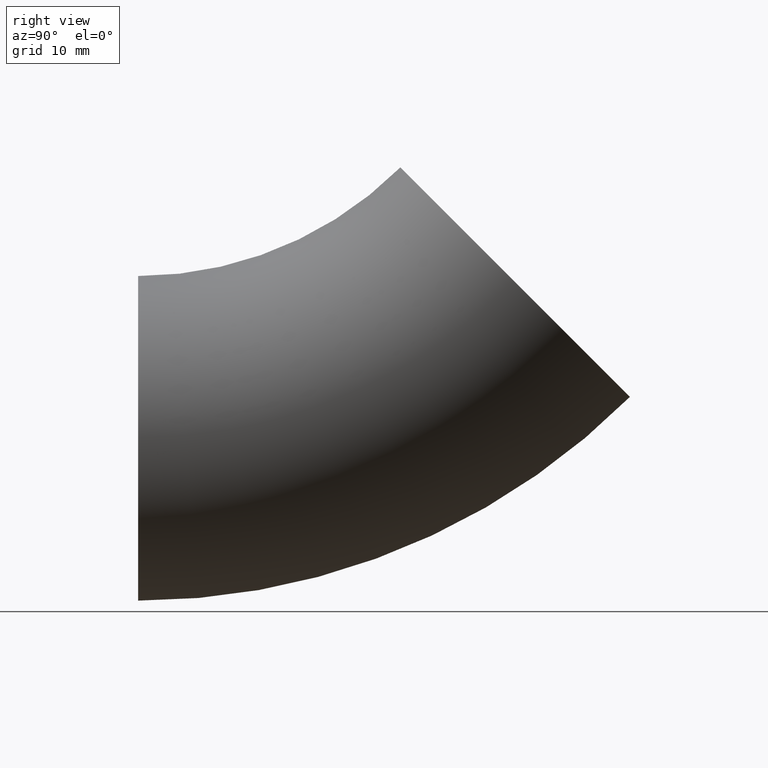
[diagram: clean part render]
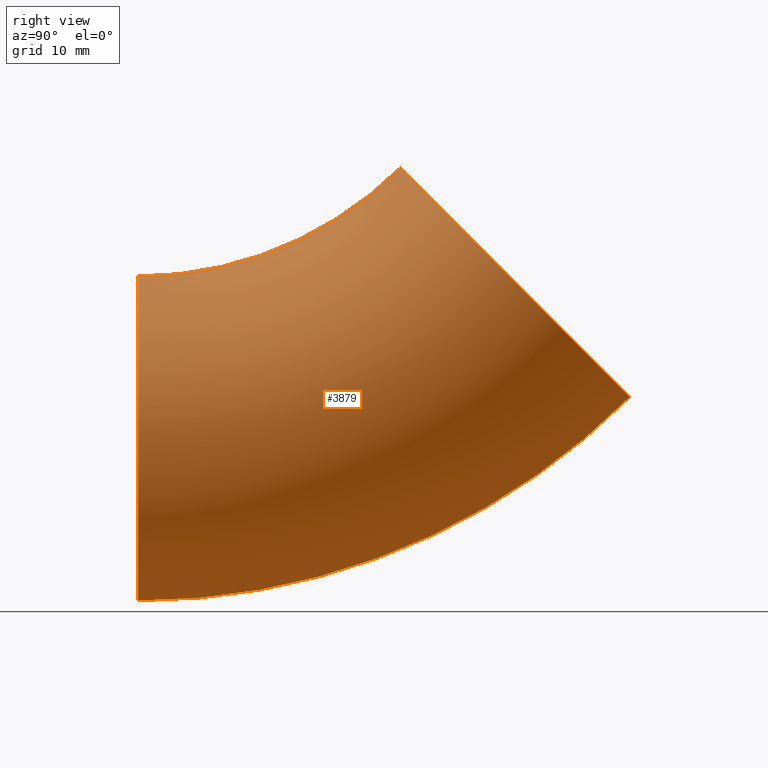
[diagram: same view with one face highlighted and labeled with its STEP entity id]
A machine part, right view. The second image highlights one B-rep face of the part: STEP entity #3879.
In plain terms, the highlighted toroidal blend (fillet) surface has major radius 69 mm and minor (blend) radius 21 mm.
Its self-contained STEP definition (entity closure, byte-faithful):
#94 = DIRECTION ( 'NONE',  ( 1.000000000000000000, 0.000000000000000000, 0.000000000000000000 ) ) ;
#131 = CIRCLE ( 'NONE', #878, 90.00000000000001421 ) ;
#789 = EDGE_LOOP ( 'NONE', ( #1418, #1719, #1045, #6909 ) ) ;
#866 = VERTEX_POINT ( 'NONE', #4912 ) ;
#878 = AXIS2_PLACEMENT_3D ( 'NONE', #5020, #2337, #8604 ) ;
#1045 = ORIENTED_EDGE ( 'NONE', *, *, #3176, .F. ) ;
#1281 = CARTESIAN_POINT ( 'NONE',  ( -2.571758278209441661E-15, 33.94112549695410763, 35.05887450304553710 ) ) ;
#1317 = AXIS2_PLACEMENT_3D ( 'NONE', #6981, #11388, #9624 ) ;
#1418 = ORIENTED_EDGE ( 'NONE', *, *, #8064, .T. ) ;
#1473 = CARTESIAN_POINT ( 'NONE',  ( 0.000000000000000000, 63.63961030678893849, 5.360389693210381168 ) ) ;
#1719 = ORIENTED_EDGE ( 'NONE', *, *, #3694, .T. ) ;
#1802 = CARTESIAN_POINT ( 'NONE',  ( 0.000000000000000000, 0.000000000000000000, 0.000000000000000000 ) ) ;
#2337 = DIRECTION ( 'NONE',  ( 1.000000000000000000, 0.000000000000000000, 0.000000000000000000 ) ) ;
#2836 = DIRECTION ( 'NONE',  ( 0.000000000000000000, 0.000000000000000000, -1.000000000000000000 ) ) ;
#3176 = EDGE_CURVE ( 'NONE', #8511, #7985, #8033, .T. ) ;
#3194 = TOROIDAL_SURFACE ( 'NONE', #4684, 69.00000000000000000, 21.00000000000000000 ) ;
#3543 = AXIS2_PLACEMENT_3D ( 'NONE', #5601, #6571, #10978 ) ;
#3694 = EDGE_CURVE ( 'NONE', #866, #7985, #131, .T. ) ;
#3879 = ADVANCED_FACE ( 'NONE', ( #7193 ), #3194, .T. ) ;
#4598 = CARTESIAN_POINT ( 'NONE',  ( 0.000000000000000000, 0.000000000000000000, 69.00000000000000000 ) ) ;
#4684 = AXIS2_PLACEMENT_3D ( 'NONE', #4598, #94, #2836 ) ;
#4912 = CARTESIAN_POINT ( 'NONE',  ( 0.000000000000000000, 0.000000000000000000, -21.00000000000000355 ) ) ;
#5020 = CARTESIAN_POINT ( 'NONE',  ( 0.000000000000000000, 0.000000000000000000, 69.00000000000000000 ) ) ;
#5147 = CIRCLE ( 'NONE', #7281, 21.00000000000000000 ) ;
#5601 = CARTESIAN_POINT ( 'NONE',  ( -2.571758278209441661E-15, 0.000000000000000000, 69.00000000000000000 ) ) ;
#6571 = DIRECTION ( 'NONE',  ( 1.000000000000000000, 0.000000000000000000, 0.000000000000000000 ) ) ;
#6909 = ORIENTED_EDGE ( 'NONE', *, *, #10628, .F. ) ;
#6981 = CARTESIAN_POINT ( 'NONE',  ( 0.000000000000000000, 48.79036790187151951, 20.20963209812796890 ) ) ;
#7193 = FACE_OUTER_BOUND ( 'NONE', #789, .T. ) ;
#7281 = AXIS2_PLACEMENT_3D ( 'NONE', #1802, #11443, #7996 ) ;
#7793 = CIRCLE ( 'NONE', #3543, 48.00000000000000000 ) ;
#7985 = VERTEX_POINT ( 'NONE', #1473 ) ;
#7996 = DIRECTION ( 'NONE',  ( 0.000000000000000000, 0.000000000000000000, 1.000000000000000000 ) ) ;
#8033 = CIRCLE ( 'NONE', #1317, 21.00000000000000000 ) ;
#8064 = EDGE_CURVE ( 'NONE', #10686, #866, #5147, .T. ) ;
#8511 = VERTEX_POINT ( 'NONE', #1281 ) ;
#8604 = DIRECTION ( 'NONE',  ( 0.000000000000000000, 0.000000000000000000, -1.000000000000000000 ) ) ;
#9624 = DIRECTION ( 'NONE',  ( 0.000000000000000000, -0.7071067811865436870, 0.7071067811865512365 ) ) ;
#9965 = CARTESIAN_POINT ( 'NONE',  ( 0.000000000000000000, 0.000000000000000000, 21.00000000000000000 ) ) ;
#10628 = EDGE_CURVE ( 'NONE', #10686, #8511, #7793, .T. ) ;
#10686 = VERTEX_POINT ( 'NONE', #9965 ) ;
#10978 = DIRECTION ( 'NONE',  ( 0.000000000000000000, 0.000000000000000000, -1.000000000000000000 ) ) ;
#11388 = DIRECTION ( 'NONE',  ( 0.000000000000000000, 0.7071067811865512365, 0.7071067811865437980 ) ) ;
#11443 = DIRECTION ( 'NONE',  ( 0.000000000000000000, 1.000000000000000000, 0.000000000000000000 ) ) ;